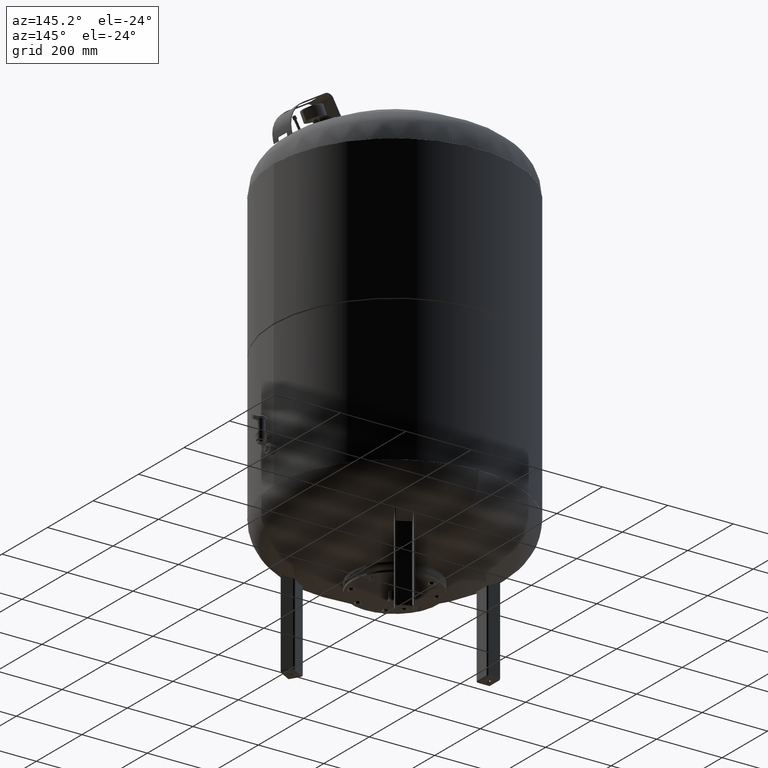
[diagram: clean part render]
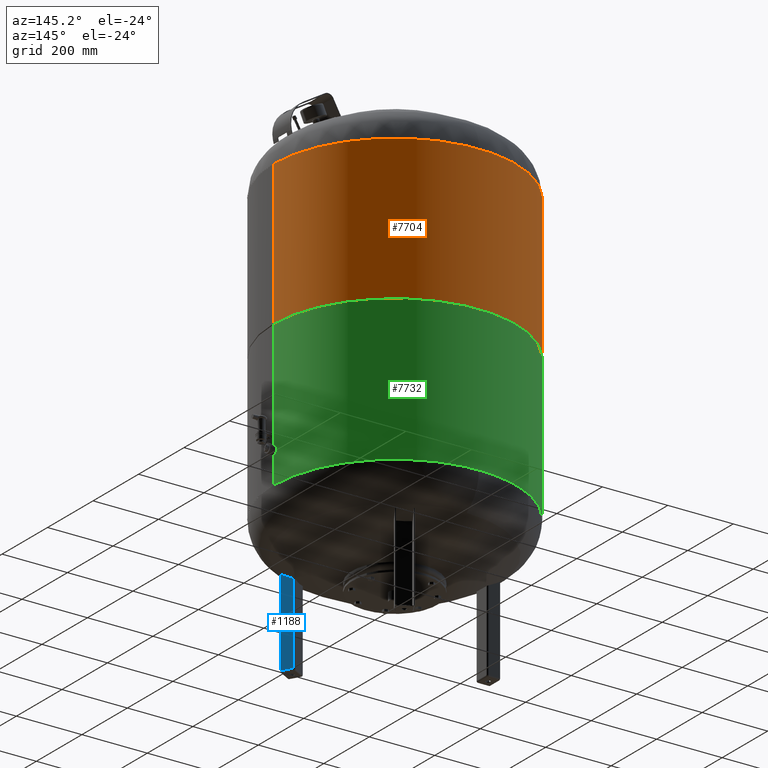
[diagram: same view with three faces highlighted in distinct colors, each labeled with its STEP entity id]
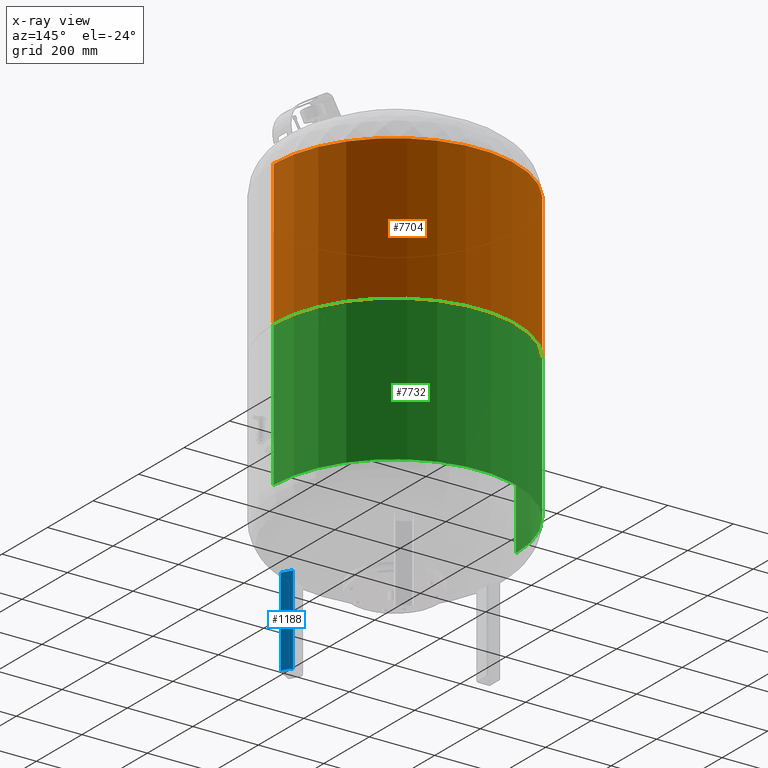
[diagram: x-ray of the same camera — body ghosted, the three highlighted faces saturated]
A machine part, auxiliary view with three faces highlighted in distinct colors.
The next image is the same camera in x-ray (body ghosted, the three faces saturated) — at least one of them is partly hidden behind the body in this view.
Their STEP definitions:

[orange] entity #7704 — the highlighted cylindrical surface (partial cylindrical patch) has radius 370 mm, axis along (0, 0, 1).
#7574=CARTESIAN_POINT('',(370.000000000000060,0.0,1255.0));
#7575=VERTEX_POINT('',#7574);
#7576=CARTESIAN_POINT('',(369.999999999999770,0.0,817.0));
#7577=VERTEX_POINT('',#7576);
#7578=CARTESIAN_POINT('',(370.000000000000060,0.0,1255.0));
#7579=DIRECTION('',(0.0,0.0,-1.0));
#7580=VECTOR('',#7579,438.0);
#7581=LINE('',#7578,#7580);
#7582=EDGE_CURVE('',#7575,#7577,#7581,.T.);
#7584=CARTESIAN_POINT('',(-370.000000000000060,-4.531044E-014,1255.0));
#7585=VERTEX_POINT('',#7584);
#7593=CARTESIAN_POINT('',(-369.999999999999770,-4.531044E-014,817.0));
#7594=VERTEX_POINT('',#7593);
#7595=CARTESIAN_POINT('',(-370.000000000000060,-4.531044E-014,1255.0));
#7596=DIRECTION('',(0.0,0.0,-1.0));
#7597=VECTOR('',#7596,438.0);
#7598=LINE('',#7595,#7597);
#7599=EDGE_CURVE('',#7585,#7594,#7598,.T.);
#7677=CARTESIAN_POINT('',(1.148254E-016,0.0,817.0));
#7678=DIRECTION('',(0.0,0.0,1.0));
#7679=DIRECTION('',(1.0,0.0,0.0));
#7680=AXIS2_PLACEMENT_3D('',#7677,#7678,#7679);
#7681=CIRCLE('',#7680,369.999999999999770);
#7682=EDGE_CURVE('',#7577,#7594,#7681,.T.);
#7687=CARTESIAN_POINT('',(1.668796E-014,0.0,1252.500000000000000));
#7688=DIRECTION('',(0.0,0.0,1.0));
#7689=DIRECTION('',(1.0,0.0,0.0));
#7690=AXIS2_PLACEMENT_3D('',#7687,#7688,#7689);
#7691=CYLINDRICAL_SURFACE('',#7690,370.000000000000060);
#7692=ORIENTED_EDGE('',*,*,#7582,.T.);
#7693=ORIENTED_EDGE('',*,*,#7682,.T.);
#7694=ORIENTED_EDGE('',*,*,#7599,.F.);
#7695=CARTESIAN_POINT('',(1.668796E-014,0.0,1255.0));
#7696=DIRECTION('',(0.0,0.0,1.0));
#7697=DIRECTION('',(1.0,0.0,0.0));
#7698=AXIS2_PLACEMENT_3D('',#7695,#7696,#7697);
#7699=CIRCLE('',#7698,370.000000000000060);
#7700=EDGE_CURVE('',#7575,#7585,#7699,.T.);
#7701=ORIENTED_EDGE('',*,*,#7700,.F.);
#7702=EDGE_LOOP('',(#7692,#7693,#7694,#7701));
#7703=FACE_OUTER_BOUND('',#7702,.T.);
#7704=ADVANCED_FACE('',(#7703),#7691,.T.);

[blue] entity #1188 — the highlighted planar face has unit normal (0.866, 0.5, 0).
#250=CARTESIAN_POINT('',(173.650635094610890,-250.771722750469340,274.0));
#251=VERTEX_POINT('',#250);
#259=CARTESIAN_POINT('',(156.650635094610890,-221.326859021798440,274.0));
#260=VERTEX_POINT('',#259);
#261=CARTESIAN_POINT('',(156.650635094610890,-221.326859021798440,274.0));
#262=DIRECTION('',(0.500000000000000,-0.866025403784438,0.0));
#263=VECTOR('',#262,33.999999999999986);
#264=LINE('',#261,#263);
#265=EDGE_CURVE('',#260,#251,#264,.T.);
#695=CARTESIAN_POINT('',(173.650635094610920,-250.771722750469340,5.000000000000004));
#696=VERTEX_POINT('',#695);
#723=CARTESIAN_POINT('',(173.650635094610920,-250.771722750469340,5.000000000000004));
#724=DIRECTION('',(0.0,0.0,1.0));
#725=VECTOR('',#724,269.0);
#726=LINE('',#723,#725);
#727=EDGE_CURVE('',#696,#251,#726,.T.);
#923=CARTESIAN_POINT('',(156.650635094610890,-221.326859021798440,5.000000000000004));
#924=VERTEX_POINT('',#923);
#932=CARTESIAN_POINT('',(156.650635094610890,-221.326859021798440,5.000000000000004));
#933=DIRECTION('',(0.500000000000001,-0.866025403784438,0.0));
#934=VECTOR('',#933,34.0);
#935=LINE('',#932,#934);
#936=EDGE_CURVE('',#924,#696,#935,.T.);
#1058=CARTESIAN_POINT('',(156.650635094610890,-221.326859021798440,5.000000000000004));
#1059=DIRECTION('',(0.0,0.0,1.0));
#1060=VECTOR('',#1059,269.0);
#1061=LINE('',#1058,#1060);
#1062=EDGE_CURVE('',#924,#260,#1061,.T.);
#1177=CARTESIAN_POINT('',(154.150635094610890,-216.996732002876230,4.592425E-015));
#1178=DIRECTION('',(0.866025403784439,0.500000000000000,1.836970E-016));
#1179=DIRECTION('',(-0.500000000000000,0.866025403784438,-4.078893E-032));
#1180=AXIS2_PLACEMENT_3D('',#1177,#1178,#1179);
#1181=PLANE('',#1180);
#1182=ORIENTED_EDGE('',*,*,#727,.F.);
#1183=ORIENTED_EDGE('',*,*,#936,.F.);
#1184=ORIENTED_EDGE('',*,*,#1062,.T.);
#1185=ORIENTED_EDGE('',*,*,#265,.T.);
#1186=EDGE_LOOP('',(#1182,#1183,#1184,#1185));
#1187=FACE_OUTER_BOUND('',#1186,.T.);
#1188=ADVANCED_FACE('',(#1187),#1181,.T.);

[green] entity #7732 — the highlighted cylindrical surface (partial cylindrical patch) has radius 370 mm, axis along (0, 0, 1).
#7532=CARTESIAN_POINT('',(369.999999999999770,0.0,814.0));
#7533=VERTEX_POINT('',#7532);
#7534=CARTESIAN_POINT('',(369.999999999999940,0.0,373.0));
#7535=VERTEX_POINT('',#7534);
#7536=CARTESIAN_POINT('',(369.999999999999770,0.0,814.0));
#7537=DIRECTION('',(0.0,0.0,-1.0));
#7538=VECTOR('',#7537,441.0);
#7539=LINE('',#7536,#7538);
#7540=EDGE_CURVE('',#7533,#7535,#7539,.T.);
#7542=CARTESIAN_POINT('',(-369.999999999999940,-4.531044E-014,814.0));
#7543=VERTEX_POINT('',#7542);
#7551=CARTESIAN_POINT('',(-369.999999999999940,-4.531044E-014,373.0));
#7552=VERTEX_POINT('',#7551);
#7553=CARTESIAN_POINT('',(-369.999999999999940,-4.531044E-014,814.0));
#7554=DIRECTION('',(0.0,0.0,-1.0));
#7555=VECTOR('',#7554,441.0);
#7556=LINE('',#7553,#7555);
#7557=EDGE_CURVE('',#7543,#7552,#7556,.T.);
#7648=CARTESIAN_POINT('',(0.0,0.0,814.0));
#7649=DIRECTION('',(0.0,0.0,1.0));
#7650=DIRECTION('',(1.0,0.0,0.0));
#7651=AXIS2_PLACEMENT_3D('',#7648,#7649,#7650);
#7652=CIRCLE('',#7651,369.999999999999770);
#7653=EDGE_CURVE('',#7533,#7543,#7652,.T.);
#7715=CARTESIAN_POINT('',(-1.668796E-014,0.0,375.500000000000000));
#7716=DIRECTION('',(0.0,0.0,1.0));
#7717=DIRECTION('',(1.0,0.0,0.0));
#7718=AXIS2_PLACEMENT_3D('',#7715,#7716,#7717);
#7719=CYLINDRICAL_SURFACE('',#7718,369.999999999999940);
#7720=ORIENTED_EDGE('',*,*,#7540,.T.);
#7721=CARTESIAN_POINT('',(-1.668796E-014,0.0,373.0));
#7722=DIRECTION('',(0.0,0.0,-1.0));
#7723=DIRECTION('',(1.0,0.0,0.0));
#7724=AXIS2_PLACEMENT_3D('',#7721,#7722,#7723);
#7725=CIRCLE('',#7724,369.999999999999940);
#7726=EDGE_CURVE('',#7552,#7535,#7725,.T.);
#7727=ORIENTED_EDGE('',*,*,#7726,.F.);
#7728=ORIENTED_EDGE('',*,*,#7557,.F.);
#7729=ORIENTED_EDGE('',*,*,#7653,.F.);
#7730=EDGE_LOOP('',(#7720,#7727,#7728,#7729));
#7731=FACE_OUTER_BOUND('',#7730,.T.);
#7732=ADVANCED_FACE('',(#7731),#7719,.T.);